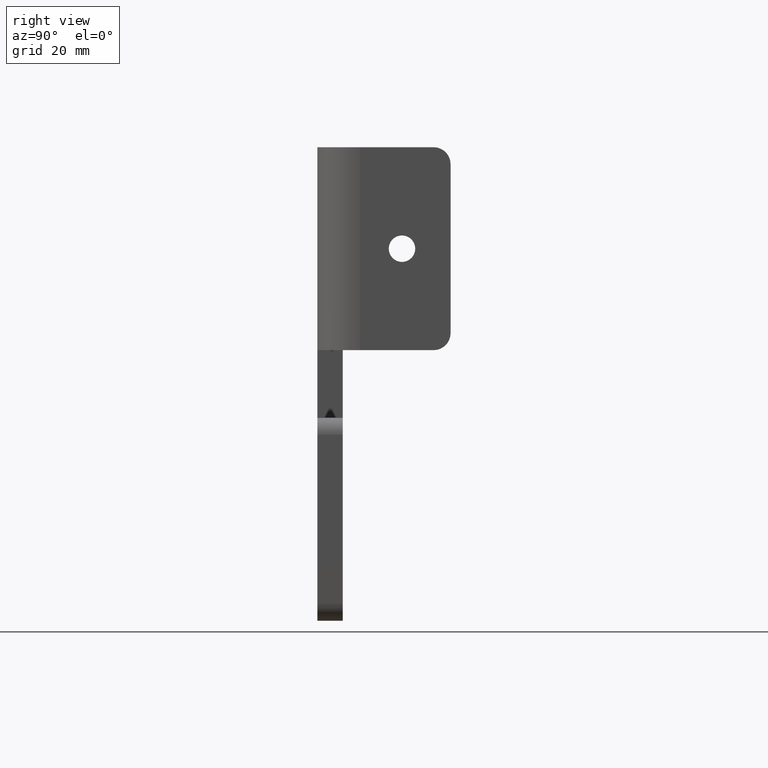
[diagram: clean part render]
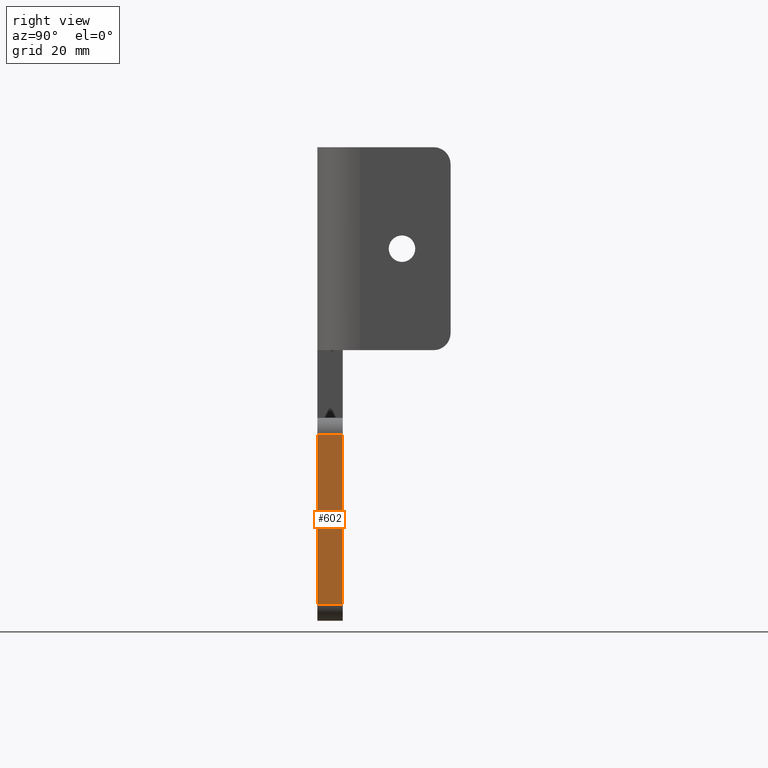
[diagram: same view with one face highlighted and labeled with its STEP entity id]
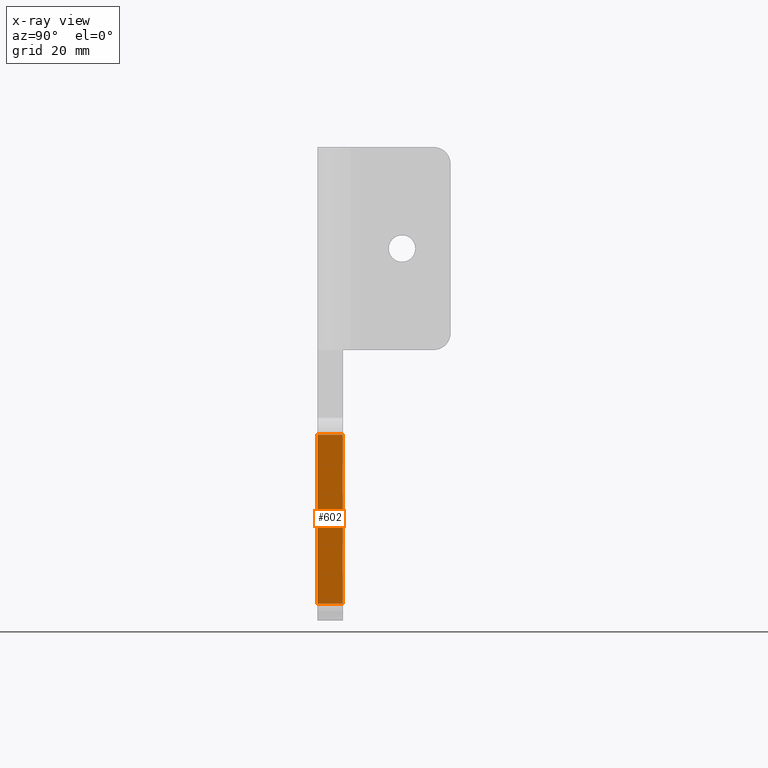
[diagram: x-ray of the same camera — body ghosted, the highlighted face saturated]
A machine part, right view. The second image highlights one B-rep face of the part: STEP entity #602.
The next image is the same camera in x-ray: the body ghosted, the highlighted face saturated — about 0% of this face is hidden behind the body in this view.
In plain terms, the highlighted planar face has unit normal (1, 0, 0).
Its self-contained STEP definition (entity closure, byte-faithful):
#28 = EDGE_LOOP ( 'NONE', ( #1195, #991, #195, #542 ) ) ;
#44 = EDGE_CURVE ( 'NONE', #404, #586, #1525, .T. ) ;
#55 = VERTEX_POINT ( 'NONE', #1505 ) ;
#167 = VECTOR ( 'NONE', #1319, 39.37007874015748143 ) ;
#195 = ORIENTED_EDGE ( 'NONE', *, *, #44, .F. ) ;
#236 = LINE ( 'NONE', #597, #1074 ) ;
#257 = LINE ( 'NONE', #336, #167 ) ;
#336 = CARTESIAN_POINT ( 'NONE',  ( 4.000000000000000000, 0.0000000000000000000, -1.375000000000000222 ) ) ;
#404 = VERTEX_POINT ( 'NONE', #1414 ) ;
#436 = CARTESIAN_POINT ( 'NONE',  ( 4.000000000000000000, 0.0000000000000000000, 0.0000000000000000000 ) ) ;
#492 = VECTOR ( 'NONE', #1340, 39.37007874015748143 ) ;
#496 = PLANE ( 'NONE',  #1123 ) ;
#542 = ORIENTED_EDGE ( 'NONE', *, *, #1252, .T. ) ;
#573 = DIRECTION ( 'NONE',  ( 0.0000000000000000000, -1.000000000000000000, 0.0000000000000000000 ) ) ;
#586 = VERTEX_POINT ( 'NONE', #686 ) ;
#597 = CARTESIAN_POINT ( 'NONE',  ( 4.000000000000000000, 0.0000000000000000000, -0.1249999999999995143 ) ) ;
#599 = FACE_OUTER_BOUND ( 'NONE', #28, .T. ) ;
#602 = ADVANCED_FACE ( 'NONE', ( #599 ), #496, .T. ) ;
#686 = CARTESIAN_POINT ( 'NONE',  ( 4.000000000000000000, 0.1875000000000000278, -1.375000000000000222 ) ) ;
#700 = EDGE_CURVE ( 'NONE', #55, #808, #1702, .T. ) ;
#802 = CARTESIAN_POINT ( 'NONE',  ( 4.000000000000000000, 0.0000000000000000000, -1.375000000000000222 ) ) ;
#808 = VERTEX_POINT ( 'NONE', #802 ) ;
#865 = EDGE_CURVE ( 'NONE', #808, #586, #257, .T. ) ;
#933 = CARTESIAN_POINT ( 'NONE',  ( 4.000000000000000000, 0.0000000000000000000, 0.0000000000000000000 ) ) ;
#991 = ORIENTED_EDGE ( 'NONE', *, *, #865, .T. ) ;
#1074 = VECTOR ( 'NONE', #573, 39.37007874015748143 ) ;
#1123 = AXIS2_PLACEMENT_3D ( 'NONE', #436, #1373, #1359 ) ;
#1195 = ORIENTED_EDGE ( 'NONE', *, *, #700, .T. ) ;
#1252 = EDGE_CURVE ( 'NONE', #404, #55, #236, .T. ) ;
#1295 = VECTOR ( 'NONE', #1310, 39.37007874015748143 ) ;
#1310 = DIRECTION ( 'NONE',  ( -0.0000000000000000000, -0.0000000000000000000, -1.000000000000000000 ) ) ;
#1319 = DIRECTION ( 'NONE',  ( -0.0000000000000000000, 1.000000000000000000, 0.0000000000000000000 ) ) ;
#1340 = DIRECTION ( 'NONE',  ( 0.0000000000000000000, 0.0000000000000000000, -1.000000000000000000 ) ) ;
#1359 = DIRECTION ( 'NONE',  ( 0.0000000000000000000, 0.0000000000000000000, -1.000000000000000000 ) ) ;
#1373 = DIRECTION ( 'NONE',  ( 1.000000000000000000, 0.0000000000000000000, 0.0000000000000000000 ) ) ;
#1414 = CARTESIAN_POINT ( 'NONE',  ( 4.000000000000000000, 0.1875000000000000278, -0.1249999999999995143 ) ) ;
#1505 = CARTESIAN_POINT ( 'NONE',  ( 4.000000000000000000, 0.0000000000000000000, -0.1249999999999995143 ) ) ;
#1525 = LINE ( 'NONE', #1606, #1295 ) ;
#1606 = CARTESIAN_POINT ( 'NONE',  ( 4.000000000000000000, 0.1875000000000000278, 0.0000000000000000000 ) ) ;
#1702 = LINE ( 'NONE', #933, #492 ) ;